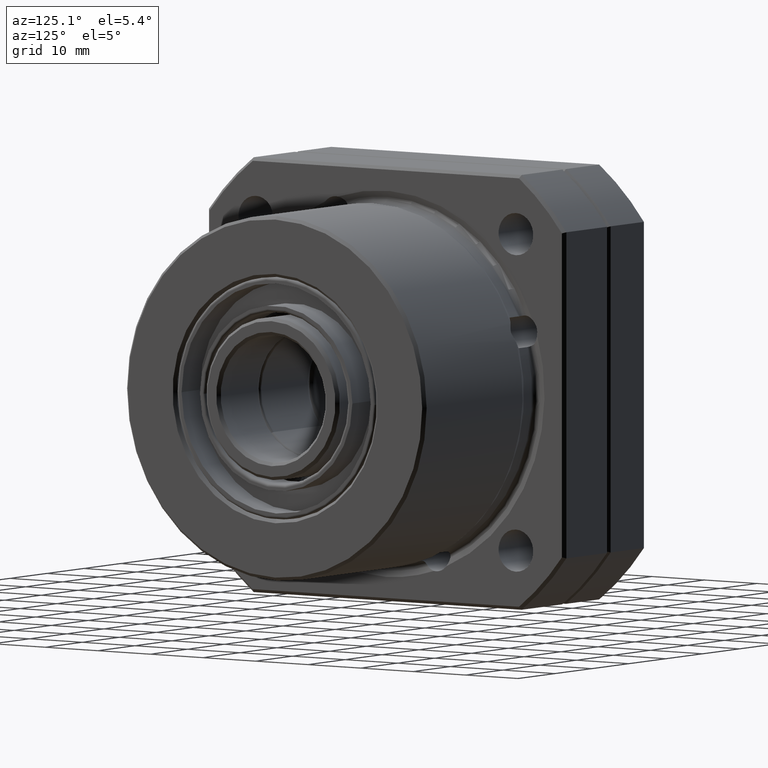
[diagram: clean part render]
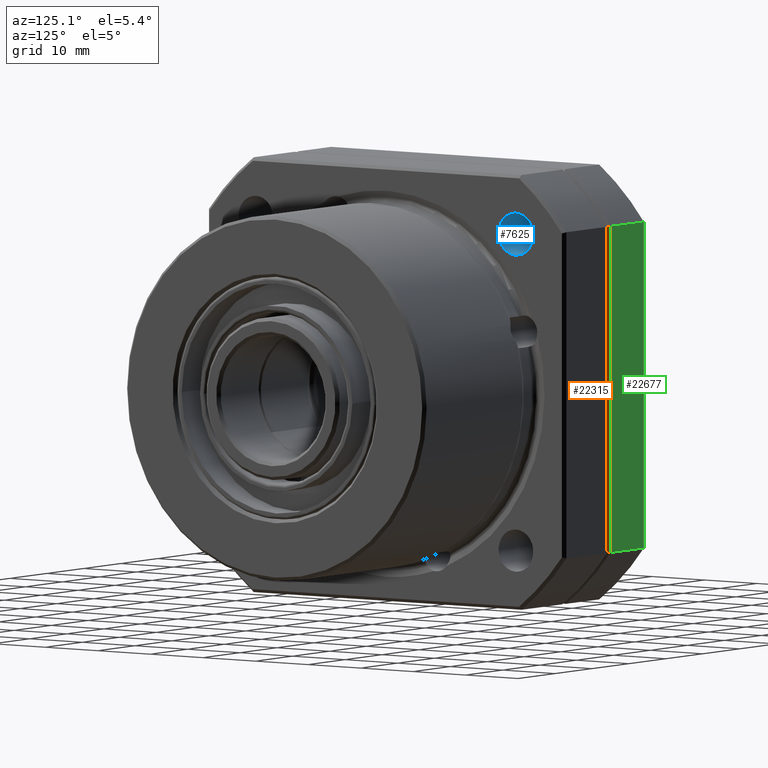
[diagram: same view with three faces highlighted in distinct colors, each labeled with its STEP entity id]
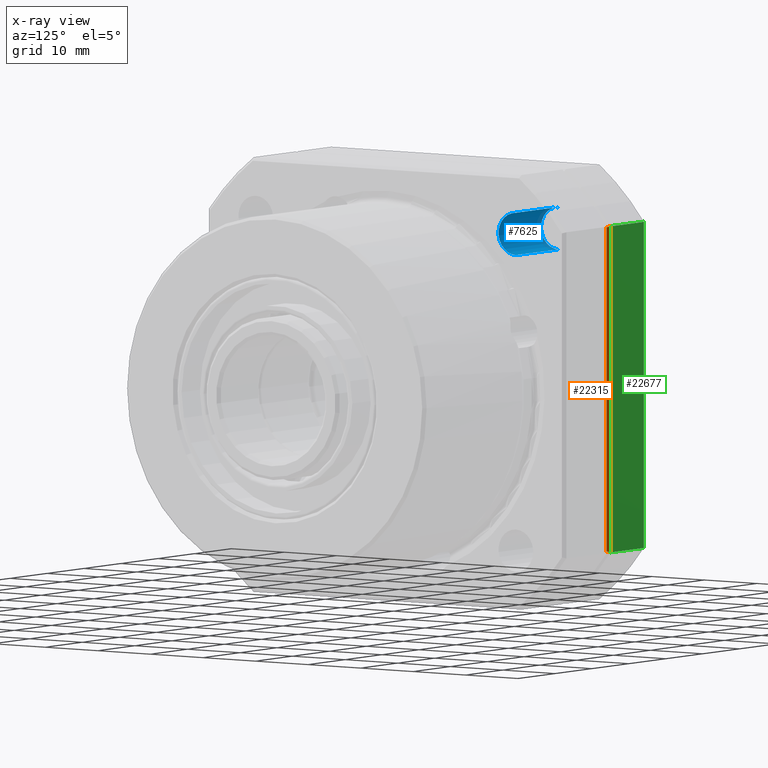
[diagram: x-ray of the same camera — body ghosted, the three highlighted faces saturated]
A machine part, auxiliary view with three faces highlighted in distinct colors.
The next image is the same camera in x-ray (body ghosted, the three faces saturated) — at least one of them is partly hidden behind the body in this view.
Their STEP definitions:

[orange] entity #22315 — the highlighted planar face has unit normal (0.7071, 0.7071, 0).
#208 = VERTEX_POINT ( 'NONE', #11851 ) ;
#226 = ORIENTED_EDGE ( 'NONE', *, *, #22354, .F. ) ;
#387 = VERTEX_POINT ( 'NONE', #12128 ) ;
#388 = VERTEX_POINT ( 'NONE', #12127 ) ;
#391 = EDGE_CURVE ( 'NONE', #387, #388, #12117, .T. ) ;
#5891 = CARTESIAN_POINT ( 'NONE',  ( -0.5000000000000177600, 33.99999999999998600, 25.50000000000003200 ) ) ;
#7410 = CARTESIAN_POINT ( 'NONE',  ( 0.0000000000000000000, 33.49999999999997200, 25.33278508178682000 ) ) ;
#7411 = CARTESIAN_POINT ( 'NONE',  ( -0.1666374950017284200, 33.66663749500170900, 25.38869755658743100 ) ) ;
#7412 = CARTESIAN_POINT ( 'NONE',  ( -0.3333044330345098500, 33.83330443303448500, 25.44443481101152200 ) ) ;
#7413 = CARTESIAN_POINT ( 'NONE',  ( -0.5000000000000177600, 33.99999999999998600, 25.50000000000003200 ) ) ;
#7415 = B_SPLINE_CURVE_WITH_KNOTS ( 'NONE', 3,
 ( #7413, #7412, #7411, #7410 ),
 .UNSPECIFIED., .F., .F.,
 ( 4, 4 ),
 ( 0.0000000000000000000, 0.0007266091307388584600 ),
 .UNSPECIFIED. ) ;
#7429 = DIRECTION ( 'NONE',  ( -0.7071067811865474600, 0.7071067811865474600, 0.0000000000000000000 ) ) ;
#7430 = DIRECTION ( 'NONE',  ( 0.7071067811865475700, 0.7071067811865475700, 0.0000000000000000000 ) ) ;
#7431 = CARTESIAN_POINT ( 'NONE',  ( -0.5000000000000143200, 33.99999999999998600, -34.00000000000000000 ) ) ;
#7432 = AXIS2_PLACEMENT_3D ( 'NONE', #7431, #7430, #7429 ) ;
#7433 = PLANE ( 'NONE',  #7432 ) ;
#7438 = FACE_OUTER_BOUND ( 'NONE', #22321, .T. ) ;
#7478 = CARTESIAN_POINT ( 'NONE',  ( -0.3333044330345098500, 33.83330443303448500, -25.44443481101150400 ) ) ;
#7479 = CARTESIAN_POINT ( 'NONE',  ( -0.5000000000000177600, 33.99999999999998600, -25.50000000000001100 ) ) ;
#7481 = B_SPLINE_CURVE_WITH_KNOTS ( 'NONE', 3,
 ( #7479, #7478, #7532, #7531 ),
 .UNSPECIFIED., .F., .F.,
 ( 4, 4 ),
 ( 0.0000000000000000000, 0.0007266091307388584600 ),
 .UNSPECIFIED. ) ;
#7531 = CARTESIAN_POINT ( 'NONE',  ( 0.0000000000000000000, 33.49999999999997200, -25.33278508178679900 ) ) ;
#7532 = CARTESIAN_POINT ( 'NONE',  ( -0.1666374950017284200, 33.66663749500170900, -25.38869755658741000 ) ) ;
#7994 = DIRECTION ( 'NONE',  ( 0.0000000000000000000, 0.0000000000000000000, -1.000000000000000000 ) ) ;
#7995 = VECTOR ( 'NONE', #7994, 1000.000000000000000 ) ;
#7996 = CARTESIAN_POINT ( 'NONE',  ( -0.5000000000000143200, 33.99999999999998600, -25.50000000000001100 ) ) ;
#8002 = LINE ( 'NONE', #7996, #7995 ) ;
#11121 = VERTEX_POINT ( 'NONE', #5891 ) ;
#11851 = CARTESIAN_POINT ( 'NONE',  ( -0.5000000000000177600, 33.99999999999998600, -25.50000000000001100 ) ) ;
#12114 = DIRECTION ( 'NONE',  ( 0.0000000000000000000, 0.0000000000000000000, 1.000000000000000000 ) ) ;
#12115 = VECTOR ( 'NONE', #12114, 1000.000000000000000 ) ;
#12116 = CARTESIAN_POINT ( 'NONE',  ( 0.0000000000000000000, 33.49999999999997200, 25.50000000000003200 ) ) ;
#12117 = LINE ( 'NONE', #12116, #12115 ) ;
#12127 = CARTESIAN_POINT ( 'NONE',  ( 0.0000000000000000000, 33.49999999999997200, 25.33278508178682000 ) ) ;
#12128 = CARTESIAN_POINT ( 'NONE',  ( 0.0000000000000000000, 33.49999999999997200, -25.33278508178679900 ) ) ;
#22289 = EDGE_CURVE ( 'NONE', #11121, #388, #7415, .T. ) ;
#22315 = ADVANCED_FACE ( 'NONE', ( #7438 ), #7433, .T. ) ;
#22321 = EDGE_LOOP ( 'NONE', ( #22325, #22338, #226, #22344 ) ) ;
#22325 = ORIENTED_EDGE ( 'NONE', *, *, #22289, .T. ) ;
#22338 = ORIENTED_EDGE ( 'NONE', *, *, #391, .F. ) ;
#22344 = ORIENTED_EDGE ( 'NONE', *, *, #22669, .F. ) ;
#22354 = EDGE_CURVE ( 'NONE', #208, #387, #7481, .T. ) ;
#22669 = EDGE_CURVE ( 'NONE', #11121, #208, #8002, .T. ) ;

[blue] entity #7625 — the highlighted cylindrical surface (edge-blend (fillet) strip) has radius 3.3 mm, axis along (-1, -0, -0).
#185 = ORIENTED_EDGE ( 'NONE', *, *, #8058, .T. ) ;
#186 = VERTEX_POINT ( 'NONE', #11837 ) ;
#187 = EDGE_LOOP ( 'NONE', ( #195, #185, #8107, #8117 ) ) ;
#190 = EDGE_CURVE ( 'NONE', #186, #200, #11822, .T. ) ;
#195 = ORIENTED_EDGE ( 'NONE', *, *, #190, .F. ) ;
#200 = VERTEX_POINT ( 'NONE', #11865 ) ;
#272 = EDGE_CURVE ( 'NONE', #200, #11222, #11913, .T. ) ;
#6065 = CARTESIAN_POINT ( 'NONE',  ( 0.5000000000000008900, 24.74873734152920700, 28.04873734152912200 ) ) ;
#6066 = CARTESIAN_POINT ( 'NONE',  ( 0.5000000000000008900, 24.74873734152920700, 21.44873734152913500 ) ) ;
#6114 = DIRECTION ( 'NONE',  ( 0.0000000000000000000, 0.0000000000000000000, -1.000000000000000000 ) ) ;
#6115 = DIRECTION ( 'NONE',  ( -1.000000000000000000, 0.0000000000000000000, 0.0000000000000000000 ) ) ;
#6116 = CARTESIAN_POINT ( 'NONE',  ( 0.5000000000000008900, 24.74873734152920700, 24.74873734152912900 ) ) ;
#6117 = AXIS2_PLACEMENT_3D ( 'NONE', #6116, #6115, #6114 ) ;
#6118 = CIRCLE ( 'NONE', #6117, 3.299999999999994000 ) ;
#7625 = ADVANCED_FACE ( 'NONE', ( #12683 ), #12678, .F. ) ;
#8058 = EDGE_CURVE ( 'NONE', #186, #11221, #12669, .T. ) ;
#8107 = ORIENTED_EDGE ( 'NONE', *, *, #11226, .T. ) ;
#8117 = ORIENTED_EDGE ( 'NONE', *, *, #272, .F. ) ;
#11221 = VERTEX_POINT ( 'NONE', #6066 ) ;
#11222 = VERTEX_POINT ( 'NONE', #6065 ) ;
#11226 = EDGE_CURVE ( 'NONE', #11221, #11222, #6118, .T. ) ;
#11818 = DIRECTION ( 'NONE',  ( 0.0000000000000000000, 0.0000000000000000000, 1.000000000000000000 ) ) ;
#11819 = DIRECTION ( 'NONE',  ( -1.000000000000000000, -0.0000000000000000000, -0.0000000000000000000 ) ) ;
#11820 = CARTESIAN_POINT ( 'NONE',  ( 12.00000000000000000, 24.74873734152920700, 24.74873734152912900 ) ) ;
#11821 = AXIS2_PLACEMENT_3D ( 'NONE', #11820, #11819, #11818 ) ;
#11822 = CIRCLE ( 'NONE', #11821, 3.299999999999994000 ) ;
#11837 = CARTESIAN_POINT ( 'NONE',  ( 12.00000000000000000, 24.74873734152920700, 21.44873734152913500 ) ) ;
#11865 = CARTESIAN_POINT ( 'NONE',  ( 12.00000000000000000, 24.74873734152920700, 28.04873734152912200 ) ) ;
#11911 = VECTOR ( 'NONE', #11977, 1000.000000000000000 ) ;
#11912 = CARTESIAN_POINT ( 'NONE',  ( 0.0000000000000000000, 24.74873734152920700, 28.04873734152912200 ) ) ;
#11913 = LINE ( 'NONE', #11912, #11911 ) ;
#11977 = DIRECTION ( 'NONE',  ( -1.000000000000000000, -0.0000000000000000000, -0.0000000000000000000 ) ) ;
#12669 = LINE ( 'NONE', #12726, #12725 ) ;
#12674 = DIRECTION ( 'NONE',  ( 0.0000000000000000000, 0.0000000000000000000, 1.000000000000000000 ) ) ;
#12675 = DIRECTION ( 'NONE',  ( -1.000000000000000000, -0.0000000000000000000, -0.0000000000000000000 ) ) ;
#12676 = CARTESIAN_POINT ( 'NONE',  ( 0.0000000000000000000, 24.74873734152920700, 24.74873734152912900 ) ) ;
#12677 = AXIS2_PLACEMENT_3D ( 'NONE', #12676, #12675, #12674 ) ;
#12678 = CYLINDRICAL_SURFACE ( 'NONE', #12677, 3.299999999999994000 ) ;
#12683 = FACE_OUTER_BOUND ( 'NONE', #187, .T. ) ;
#12724 = DIRECTION ( 'NONE',  ( -1.000000000000000000, -0.0000000000000000000, -0.0000000000000000000 ) ) ;
#12725 = VECTOR ( 'NONE', #12724, 1000.000000000000000 ) ;
#12726 = CARTESIAN_POINT ( 'NONE',  ( 0.0000000000000000000, 24.74873734152920700, 21.44873734152913500 ) ) ;

[green] entity #22677 — the highlighted planar face has unit normal (0, 1, 0).
#208 = VERTEX_POINT ( 'NONE', #11851 ) ;
#220 = EDGE_CURVE ( 'NONE', #208, #386, #11848, .T. ) ;
#386 = VERTEX_POINT ( 'NONE', #12129 ) ;
#5886 = CARTESIAN_POINT ( 'NONE',  ( -9.499999999999998200, 33.99999999999998600, 25.50000000000003200 ) ) ;
#5887 = DIRECTION ( 'NONE',  ( 1.000000000000000000, -0.0000000000000000000, -0.0000000000000000000 ) ) ;
#5888 = VECTOR ( 'NONE', #5887, 1000.000000000000000 ) ;
#5889 = CARTESIAN_POINT ( 'NONE',  ( -52.83312411036065700, 33.99999999999998600, 25.50000000000003200 ) ) ;
#5890 = LINE ( 'NONE', #5889, #5888 ) ;
#5891 = CARTESIAN_POINT ( 'NONE',  ( -0.5000000000000177600, 33.99999999999998600, 25.50000000000003200 ) ) ;
#7978 = DIRECTION ( 'NONE',  ( 0.0000000000000000000, 1.000000000000000000, 0.0000000000000000000 ) ) ;
#7979 = CARTESIAN_POINT ( 'NONE',  ( 4.000000000000001800, 33.99999999999998600, -34.00000000000000000 ) ) ;
#7980 = AXIS2_PLACEMENT_3D ( 'NONE', #7979, #7978, #8033 ) ;
#7981 = PLANE ( 'NONE',  #7980 ) ;
#7983 = FACE_OUTER_BOUND ( 'NONE', #22643, .T. ) ;
#7994 = DIRECTION ( 'NONE',  ( 0.0000000000000000000, 0.0000000000000000000, -1.000000000000000000 ) ) ;
#7995 = VECTOR ( 'NONE', #7994, 1000.000000000000000 ) ;
#7996 = CARTESIAN_POINT ( 'NONE',  ( -0.5000000000000143200, 33.99999999999998600, -25.50000000000001100 ) ) ;
#8002 = LINE ( 'NONE', #7996, #7995 ) ;
#8004 = DIRECTION ( 'NONE',  ( 0.0000000000000000000, 0.0000000000000000000, 1.000000000000000000 ) ) ;
#8005 = VECTOR ( 'NONE', #8004, 1000.000000000000000 ) ;
#8006 = CARTESIAN_POINT ( 'NONE',  ( -9.499999999999998200, 33.99999999999998600, 25.50000000000003200 ) ) ;
#8007 = LINE ( 'NONE', #8006, #8005 ) ;
#8033 = DIRECTION ( 'NONE',  ( -1.000000000000000000, 0.0000000000000000000, 0.0000000000000000000 ) ) ;
#11121 = VERTEX_POINT ( 'NONE', #5891 ) ;
#11123 = EDGE_CURVE ( 'NONE', #11124, #11121, #5890, .T. ) ;
#11124 = VERTEX_POINT ( 'NONE', #5886 ) ;
#11845 = DIRECTION ( 'NONE',  ( -1.000000000000000000, 0.0000000000000000000, 0.0000000000000000000 ) ) ;
#11846 = VECTOR ( 'NONE', #11845, 1000.000000000000000 ) ;
#11847 = CARTESIAN_POINT ( 'NONE',  ( -52.83312411036065700, 33.99999999999998600, -25.50000000000001100 ) ) ;
#11848 = LINE ( 'NONE', #11847, #11846 ) ;
#11851 = CARTESIAN_POINT ( 'NONE',  ( -0.5000000000000177600, 33.99999999999998600, -25.50000000000001100 ) ) ;
#12129 = CARTESIAN_POINT ( 'NONE',  ( -9.499999999999998200, 33.99999999999998600, -25.50000000000001100 ) ) ;
#22643 = EDGE_LOOP ( 'NONE', ( #22668, #22670, #22664, #22666 ) ) ;
#22664 = ORIENTED_EDGE ( 'NONE', *, *, #220, .T. ) ;
#22665 = EDGE_CURVE ( 'NONE', #386, #11124, #8007, .T. ) ;
#22666 = ORIENTED_EDGE ( 'NONE', *, *, #22665, .T. ) ;
#22668 = ORIENTED_EDGE ( 'NONE', *, *, #11123, .T. ) ;
#22669 = EDGE_CURVE ( 'NONE', #11121, #208, #8002, .T. ) ;
#22670 = ORIENTED_EDGE ( 'NONE', *, *, #22669, .T. ) ;
#22677 = ADVANCED_FACE ( 'NONE', ( #7983 ), #7981, .T. ) ;